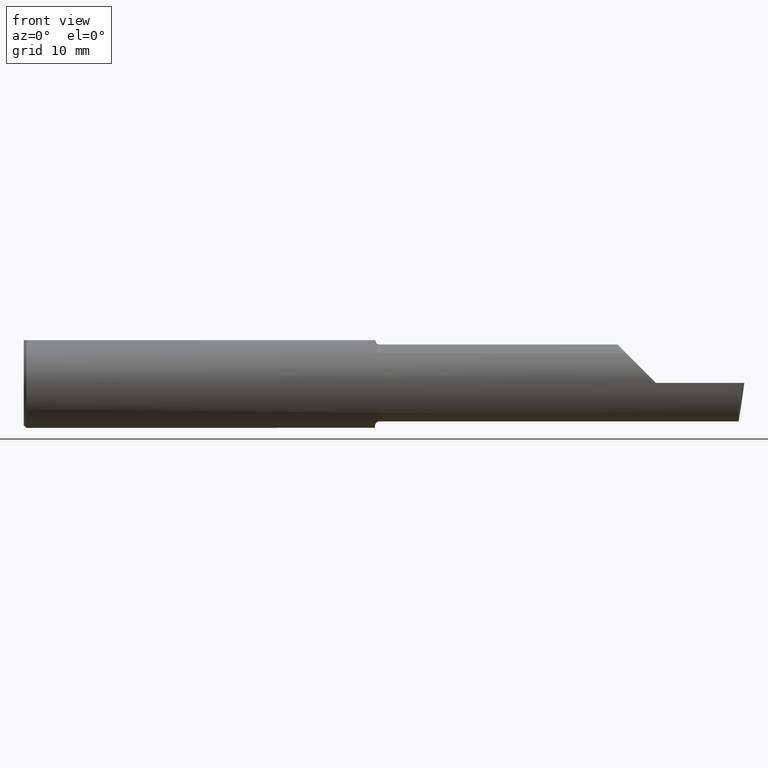
[diagram: clean part render]
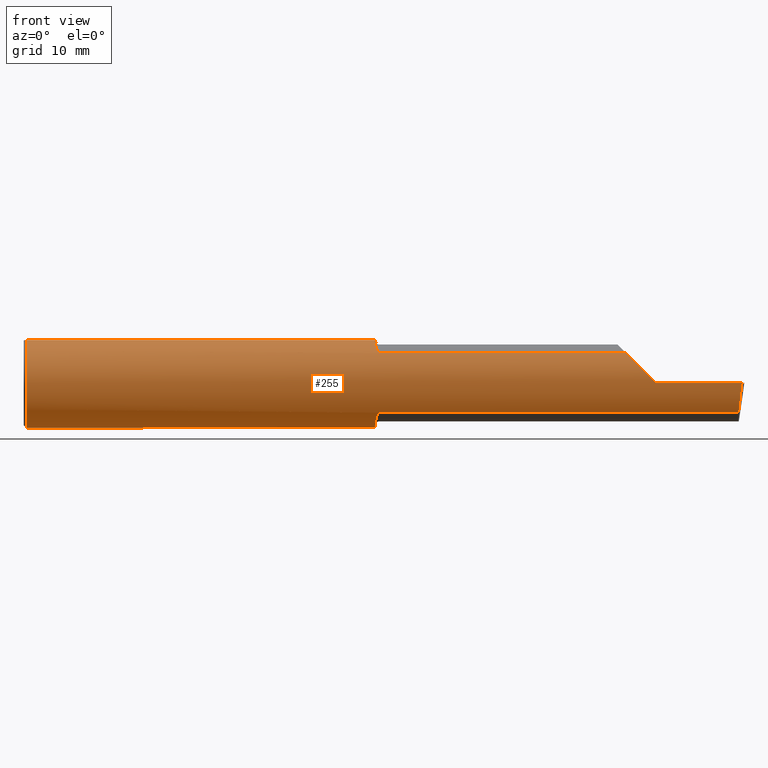
[diagram: same view with one face highlighted and labeled with its STEP entity id]
A machine part, front view. The second image highlights one B-rep face of the part: STEP entity #255.
In plain terms, the highlighted cylindrical surface (partial cylindrical patch) has radius 6.3462 mm, axis along (-1, -0, -0).
Its self-contained STEP definition (entity closure, byte-faithful):
#19 = EDGE_CURVE ( 'NONE', #245, #629, #401, .T. ) ;
#20 = VERTEX_POINT ( 'NONE', #786 ) ;
#27 = VECTOR ( 'NONE', #807, 39.37007874015748143 ) ;
#35 = CARTESIAN_POINT ( 'NONE',  ( 3.448145753305724259, -0.2498500000000001275, 0.06185424669427388999 ) ) ;
#53 = CARTESIAN_POINT ( 'NONE',  ( 1.972243150415551094, -0.1862809296394751513, 0.1665094106511983141 ) ) ;
#57 = CARTESIAN_POINT ( 'NONE',  ( 1.975000000000000089, -0.1868028301886797693, -0.1659208399614082174 ) ) ;
#59 = CARTESIAN_POINT ( 'NONE',  ( 1.950000000000000178, -0.08036415094339718901, 0.2365726648265747134 ) ) ;
#66 = CARTESIAN_POINT ( 'NONE',  ( 1.967016733372314086, -0.1817333077058775337, -0.1714754572696057799 ) ) ;
#85 = ORIENTED_EDGE ( 'NONE', *, *, #439, .T. ) ;
#88 = VERTEX_POINT ( 'NONE', #394 ) ;
#122 = CARTESIAN_POINT ( 'NONE',  ( 1.967018584423771976, -0.1817363555988620871, 0.1714722504633798827 ) ) ;
#126 = FACE_OUTER_BOUND ( 'NONE', #309, .T. ) ;
#127 = CARTESIAN_POINT ( 'NONE',  ( 0.01499999999999999771, 0.000000000000000000, -0.2498499999999999888 ) ) ;
#128 = EDGE_CURVE ( 'NONE', #433, #235, #327, .T. ) ;
#137 = CARTESIAN_POINT ( 'NONE',  ( 1.962797058507745440, -0.1743943839926593575, -0.1789958554125692103 ) ) ;
#157 = CARTESIAN_POINT ( 'NONE',  ( 1.950000000000000178, 0.000000000000000000, 0.000000000000000000 ) ) ;
#158 = ORIENTED_EDGE ( 'NONE', *, *, #128, .F. ) ;
#163 = CARTESIAN_POINT ( 'NONE',  ( 1.950000000000000178, 0.07650098038587482829, 0.2378500000000000059 ) ) ;
#165 = DIRECTION ( 'NONE',  ( -1.000000000000000000, -0.000000000000000000, -0.000000000000000000 ) ) ;
#185 = VECTOR ( 'NONE', #367, 39.37007874015748143 ) ;
#188 = DIRECTION ( 'NONE',  ( 0.000000000000000000, 0.000000000000000000, 1.000000000000000000 ) ) ;
#190 = CARTESIAN_POINT ( 'NONE',  ( 3.968492717492762445, -0.1868028301886794917, -0.1659208399614086338 ) ) ;
#194 = CARTESIAN_POINT ( 'NONE',  ( 3.987221270274236229, -0.2498499999999999888, -1.346590301211604859E-16 ) ) ;
#195 = CARTESIAN_POINT ( 'NONE',  ( 1.975000000000000089, -0.1868028301886797693, -0.1659208399614082174 ) ) ;
#196 = CARTESIAN_POINT ( 'NONE',  ( 1.951680550596499808, -0.1214972057705736297, 0.2186080375779519414 ) ) ;
#199 = CARTESIAN_POINT ( 'NONE',  ( 1.950000000000000400, -0.09104204635388248035, 0.2329453649474653443 ) ) ;
#202 = VECTOR ( 'NONE', #280, 39.37007874015748143 ) ;
#203 = CARTESIAN_POINT ( 'NONE',  ( 1.965875558094659858, -0.1799506819598045704, -0.1733486322212174635 ) ) ;
#204 = DIRECTION ( 'NONE',  ( 0.000000000000000000, 0.000000000000000000, 1.000000000000000000 ) ) ;
#205 = CARTESIAN_POINT ( 'NONE',  ( 1.955537042546466653, -0.1495003888704992401, -0.2004994225712668776 ) ) ;
#206 = VERTEX_POINT ( 'NONE', #731 ) ;
#213 = LINE ( 'NONE', #358, #202 ) ;
#214 = DIRECTION ( 'NONE',  ( -1.000000000000000000, -0.000000000000000000, -0.000000000000000000 ) ) ;
#218 = CARTESIAN_POINT ( 'NONE',  ( 0.01499999999999999771, 0.000000000000000000, 0.000000000000000000 ) ) ;
#220 = ORIENTED_EDGE ( 'NONE', *, *, #784, .T. ) ;
#227 = ORIENTED_EDGE ( 'NONE', *, *, #577, .F. ) ;
#235 = VERTEX_POINT ( 'NONE', #400 ) ;
#241 = CIRCLE ( 'NONE', #364, 0.2498499999999999888 ) ;
#243 = CARTESIAN_POINT ( 'NONE',  ( 0.000000000000000000, -0.07650098038587477278, 0.2378500000000000059 ) ) ;
#244 = CARTESIAN_POINT ( 'NONE',  ( 0.01499999999999999771, 0.000000000000000000, 0.000000000000000000 ) ) ;
#245 = VERTEX_POINT ( 'NONE', #127 ) ;
#246 = EDGE_CURVE ( 'NONE', #235, #279, #570, .T. ) ;
#248 = ORIENTED_EDGE ( 'NONE', *, *, #337, .F. ) ;
#249 =( BOUNDED_CURVE ( )  B_SPLINE_CURVE ( 3, ( #190, #533, #800, #608 ),
 .UNSPECIFIED., .F., .F. ) 
 B_SPLINE_CURVE_WITH_KNOTS ( ( 4, 4 ),
 ( 0.6344818218799022080, 1.360746882514783040 ),
 .UNSPECIFIED. ) 
 CURVE ( )  GEOMETRIC_REPRESENTATION_ITEM ( )  RATIONAL_B_SPLINE_CURVE ( ( 1.000000000000000000, 0.9565258159410998662, 0.9565258159410998662, 1.000000000000000000 ) ) 
 REPRESENTATION_ITEM ( '' )  );
#255 = ADVANCED_FACE ( 'NONE', ( #126 ), #541, .T. ) ;
#260 = CARTESIAN_POINT ( 'NONE',  ( 1.975000000000000089, -0.1868028301886799081, 0.1659208399614080509 ) ) ;
#266 = CARTESIAN_POINT ( 'NONE',  ( 1.975000000000000089, -0.1868028301886799081, 0.1659208399614080509 ) ) ;
#272 = CARTESIAN_POINT ( 'NONE',  ( 1.972232603162240805, -0.1862758070845880742, -0.1665151405181419519 ) ) ;
#273 = CARTESIAN_POINT ( 'NONE',  ( 1.962758562425230835, -0.1743135686468872125, 0.1790760091940036824 ) ) ;
#279 = VERTEX_POINT ( 'NONE', #266 ) ;
#280 = DIRECTION ( 'NONE',  ( -1.000000000000000000, -0.000000000000000000, -0.000000000000000000 ) ) ;
#286 = EDGE_CURVE ( 'NONE', #555, #513, #249, .T. ) ;
#291 = VERTEX_POINT ( 'NONE', #195 ) ;
#309 = EDGE_LOOP ( 'NONE', ( #824, #714, #85, #619, #248, #690, #158, #220, #426, #356, #515, #423, #227 ) ) ;
#322 = CARTESIAN_POINT ( 'NONE',  ( 0.000000000000000000, 0.000000000000000000, 0.000000000000000000 ) ) ;
#327 = CIRCLE ( 'NONE', #411, 0.2498499999999999888 ) ;
#333 = CARTESIAN_POINT ( 'NONE',  ( 1.970144309637441138, -0.1849788583324336322, 0.1679547276881062645 ) ) ;
#337 = EDGE_CURVE ( 'NONE', #279, #206, #610, .T. ) ;
#338 = CARTESIAN_POINT ( 'NONE',  ( 0.000000000000000000, 0.07650098038587481442, 0.2378500000000000059 ) ) ;
#343 = CARTESIAN_POINT ( 'NONE',  ( 1.950000000000000178, -0.08036415094339718901, -0.2365726648265747134 ) ) ;
#356 = ORIENTED_EDGE ( 'NONE', *, *, #736, .F. ) ;
#358 = CARTESIAN_POINT ( 'NONE',  ( 2.760000000000000231, -0.1868028301886794917, -0.1659208399614086338 ) ) ;
#364 = AXIS2_PLACEMENT_3D ( 'NONE', #157, #785, #842 ) ;
#367 = DIRECTION ( 'NONE',  ( -1.000000000000000000, -0.000000000000000000, -0.000000000000000000 ) ) ;
#373 = CARTESIAN_POINT ( 'NONE',  ( 7.089685198749692867E-32, -0.2498499999999999610, 4.685946446163635703E-16 ) ) ;
#382 = AXIS2_PLACEMENT_3D ( 'NONE', #244, #449, #188 ) ;
#384 = DIRECTION ( 'NONE',  ( 0.000000000000000000, 0.000000000000000000, -1.000000000000000000 ) ) ;
#386 = DIRECTION ( 'NONE',  ( 1.000000000000000000, 0.000000000000000000, 0.000000000000000000 ) ) ;
#394 = CARTESIAN_POINT ( 'NONE',  ( 1.950000000000000178, -0.08036415094339718901, -0.2365726648265747134 ) ) ;
#400 = CARTESIAN_POINT ( 'NONE',  ( 1.950000000000000178, -0.08036415094339718901, 0.2365726648265747134 ) ) ;
#401 = CIRCLE ( 'NONE', #382, 0.2498499999999999888 ) ;
#406 = CARTESIAN_POINT ( 'NONE',  ( 3.968492717492762445, -0.1868028301886794917, -0.1659208399614086338 ) ) ;
#410 = CARTESIAN_POINT ( 'NONE',  ( 1.949999999999989297, -0.1016924291521895257, -0.2293274111511737212 ) ) ;
#411 = AXIS2_PLACEMENT_3D ( 'NONE', #674, #655, #384 ) ;
#422 =( BOUNDED_CURVE ( )  B_SPLINE_CURVE ( 3, ( #645, #35, #839, #656 ),
 .UNSPECIFIED., .F., .F. ) 
 B_SPLINE_CURVE_WITH_KNOTS ( ( 4, 4 ),
 ( 4.712388980384687898, 5.438654041019563401 ),
 .UNSPECIFIED. ) 
 CURVE ( )  GEOMETRIC_REPRESENTATION_ITEM ( )  RATIONAL_B_SPLINE_CURVE ( ( 1.000000000000000000, 0.9565258159411005323, 0.9565258159411005323, 1.000000000000000000 ) ) 
 REPRESENTATION_ITEM ( '' )  );
#423 = ORIENTED_EDGE ( 'NONE', *, *, #750, .F. ) ;
#426 = ORIENTED_EDGE ( 'NONE', *, *, #19, .F. ) ;
#427 = VERTEX_POINT ( 'NONE', #163 ) ;
#433 = VERTEX_POINT ( 'NONE', #705 ) ;
#439 = EDGE_CURVE ( 'NONE', #513, #823, #845, .T. ) ;
#444 = EDGE_CURVE ( 'NONE', #823, #206, #422, .T. ) ;
#449 = DIRECTION ( 'NONE',  ( -1.000000000000000000, -0.000000000000000000, -0.000000000000000000 ) ) ;
#463 = CARTESIAN_POINT ( 'NONE',  ( 1.957343635746627175, -0.1582230848692702252, 0.1936715022401945541 ) ) ;
#470 = CARTESIAN_POINT ( 'NONE',  ( 1.970138573936400572, -0.1849738682364336084, -0.1679602226613245985 ) ) ;
#478 = CARTESIAN_POINT ( 'NONE',  ( 1.951227564404961257, -0.1217005943024302012, -0.2193523119135132871 ) ) ;
#482 = CARTESIAN_POINT ( 'NONE',  ( 0.01499999999998191669, -0.07650098038590480432, 0.2378500000000000059 ) ) ;
#486 = DIRECTION ( 'NONE',  ( 0.000000000000000000, 0.000000000000000000, 1.000000000000000000 ) ) ;
#513 = VERTEX_POINT ( 'NONE', #194 ) ;
#515 = ORIENTED_EDGE ( 'NONE', *, *, #557, .T. ) ;
#528 = AXIS2_PLACEMENT_3D ( 'NONE', #218, #214, #486 ) ;
#533 = CARTESIAN_POINT ( 'NONE',  ( 3.973097331270538657, -0.2278791102234774268, -0.1196748990301326199 ) ) ;
#541 = CYLINDRICAL_SURFACE ( 'NONE', #719, 0.2498499999999999888 ) ;
#555 = VERTEX_POINT ( 'NONE', #406 ) ;
#557 = EDGE_CURVE ( 'NONE', #20, #427, #615, .T. ) ;
#570 = B_SPLINE_CURVE_WITH_KNOTS ( 'NONE', 3,
 ( #59, #199, #801, #196, #602, #730, #463, #740, #273, #804, #122, #809, #333, #53, #863, #260 ),
 .UNSPECIFIED., .F., .F.,
 ( 4, 2, 2, 2, 2, 2, 2, 4 ),
 ( 0.0001034694911878293507, 0.0009591263138367569618, 0.001814783136485684451, 0.002670439959134611723, 0.003098268370459072215, 0.003312182576121307231, 0.003419139678952419752, 0.003526096781783531840 ),
 .UNSPECIFIED. ) ;
#577 = EDGE_CURVE ( 'NONE', #291, #88, #748, .T. ) ;
#592 = EDGE_CURVE ( 'NONE', #555, #291, #213, .T. ) ;
#597 = DIRECTION ( 'NONE',  ( -1.000000000000000000, -0.000000000000000000, -0.000000000000000000 ) ) ;
#601 = CIRCLE ( 'NONE', #528, 0.2498499999999999888 ) ;
#602 = CARTESIAN_POINT ( 'NONE',  ( 1.952700302592143000, -0.1312404656039931616, 0.2128935242986061405 ) ) ;
#608 = CARTESIAN_POINT ( 'NONE',  ( 3.987221270274236229, -0.2498499999999999888, -1.346590301211604859E-16 ) ) ;
#609 = CARTESIAN_POINT ( 'NONE',  ( 1.961285743882607679, -0.1704402150608122779, -0.1827701868778691119 ) ) ;
#610 = LINE ( 'NONE', #782, #634 ) ;
#615 = LINE ( 'NONE', #338, #27 ) ;
#619 = ORIENTED_EDGE ( 'NONE', *, *, #444, .T. ) ;
#629 = VERTEX_POINT ( 'NONE', #482 ) ;
#634 = VECTOR ( 'NONE', #386, 39.37007874015748143 ) ;
#645 = CARTESIAN_POINT ( 'NONE',  ( 3.509999999999999787, -0.2498499999999999610, -6.245698675651499853E-17 ) ) ;
#655 = DIRECTION ( 'NONE',  ( 1.000000000000000000, 0.000000000000000000, 0.000000000000000000 ) ) ;
#656 = CARTESIAN_POINT ( 'NONE',  ( 3.344079160038590626, -0.1868028301886808795, 0.1659208399614073015 ) ) ;
#674 = CARTESIAN_POINT ( 'NONE',  ( 1.950000000000000178, 0.000000000000000000, 0.000000000000000000 ) ) ;
#675 = CARTESIAN_POINT ( 'NONE',  ( 1.973547768521294765, -0.1868028301886799081, -0.1659208399614081619 ) ) ;
#690 = ORIENTED_EDGE ( 'NONE', *, *, #246, .F. ) ;
#701 = CARTESIAN_POINT ( 'NONE',  ( 3.509999999999999787, -0.2498499999999999610, -6.245698675651499853E-17 ) ) ;
#705 = CARTESIAN_POINT ( 'NONE',  ( 1.950000000000000178, -0.07650098038590487370, 0.2378500000000000059 ) ) ;
#714 = ORIENTED_EDGE ( 'NONE', *, *, #286, .T. ) ;
#719 = AXIS2_PLACEMENT_3D ( 'NONE', #322, #597, #204 ) ;
#730 = CARTESIAN_POINT ( 'NONE',  ( 1.955553274544309605, -0.1495649063853953797, 0.2004446339470379312 ) ) ;
#731 = CARTESIAN_POINT ( 'NONE',  ( 3.344079160038590626, -0.1868028301886808795, 0.1659208399614073015 ) ) ;
#736 = EDGE_CURVE ( 'NONE', #20, #245, #601, .T. ) ;
#738 = CARTESIAN_POINT ( 'NONE',  ( 1.969285582744839225, -0.1841881072713815182, -0.1688230283719343860 ) ) ;
#739 = VECTOR ( 'NONE', #165, 39.37007874015748143 ) ;
#740 = CARTESIAN_POINT ( 'NONE',  ( 1.961268146151110114, -0.1703904609315284868, 0.1828159088808241073 ) ) ;
#748 = B_SPLINE_CURVE_WITH_KNOTS ( 'NONE', 3,
 ( #57, #675, #272, #470, #738, #66, #203, #137, #609, #811, #205, #478, #410, #343 ),
 .UNSPECIFIED., .F., .F.,
 ( 4, 2, 2, 2, 2, 2, 4 ),
 ( 1.967619685218957390E-07, 0.0001090840123077839029, 0.0002179712626470458941, 0.0004357457633255699308, 0.0008712947646826178956, 0.001742392767396720764, 0.003484588772824924550 ),
 .UNSPECIFIED. ) ;
#750 = EDGE_CURVE ( 'NONE', #88, #427, #241, .T. ) ;
#766 = LINE ( 'NONE', #243, #739 ) ;
#782 = CARTESIAN_POINT ( 'NONE',  ( 2.760000000000000231, -0.1868028301886794917, 0.1659208399614086338 ) ) ;
#784 = EDGE_CURVE ( 'NONE', #433, #629, #766, .T. ) ;
#785 = DIRECTION ( 'NONE',  ( 1.000000000000000000, 0.000000000000000000, 0.000000000000000000 ) ) ;
#786 = CARTESIAN_POINT ( 'NONE',  ( 0.01499999999999999771, 0.07650098038587481442, 0.2378500000000000059 ) ) ;
#800 = CARTESIAN_POINT ( 'NONE',  ( 3.979623920331824660, -0.2498499999999999610, -0.06185424669427504185 ) ) ;
#801 = CARTESIAN_POINT ( 'NONE',  ( 1.950332084145229850, -0.1014027185340453246, 0.2286231260779310048 ) ) ;
#804 = CARTESIAN_POINT ( 'NONE',  ( 1.965857071685142010, -0.1799228808997984097, 0.1733778622677444314 ) ) ;
#807 = DIRECTION ( 'NONE',  ( 1.000000000000000000, 0.000000000000000000, 0.000000000000000000 ) ) ;
#809 = CARTESIAN_POINT ( 'NONE',  ( 1.969290397284158445, -0.1841927918507054729, 0.1688179232533551788 ) ) ;
#811 = CARTESIAN_POINT ( 'NONE',  ( 1.957341173198633211, -0.1582250006961564981, -0.1936724403215121793 ) ) ;
#823 = VERTEX_POINT ( 'NONE', #701 ) ;
#824 = ORIENTED_EDGE ( 'NONE', *, *, #592, .F. ) ;
#839 = CARTESIAN_POINT ( 'NONE',  ( 3.390325100969866945, -0.2278791102234780930, 0.1196748990301311488 ) ) ;
#842 = DIRECTION ( 'NONE',  ( 0.000000000000000000, 0.000000000000000000, -1.000000000000000000 ) ) ;
#845 = LINE ( 'NONE', #373, #185 ) ;
#863 = CARTESIAN_POINT ( 'NONE',  ( 1.973548866468135765, -0.1868028301907326549, 0.1659208399590972882 ) ) ;